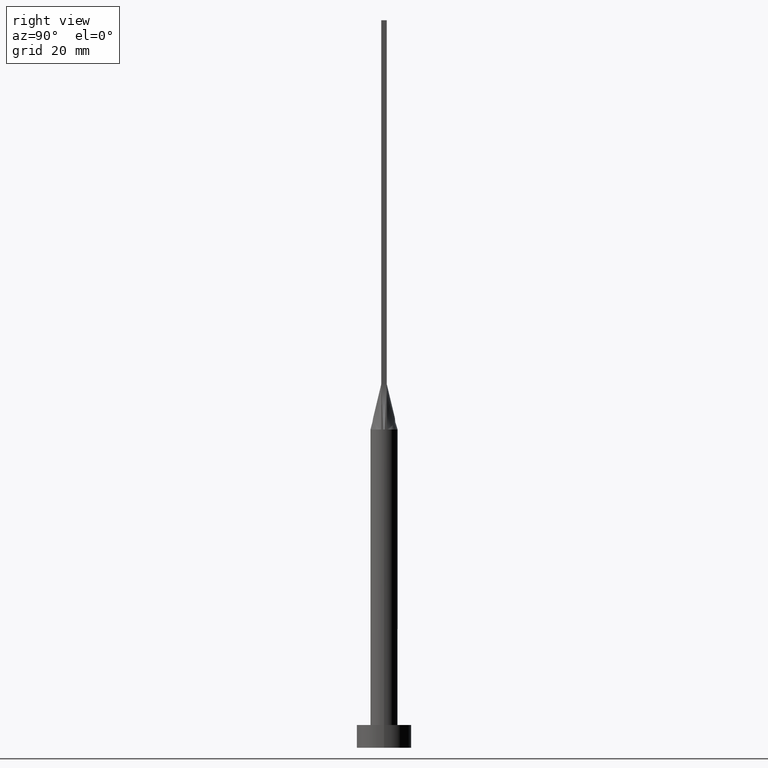
[diagram: clean part render]
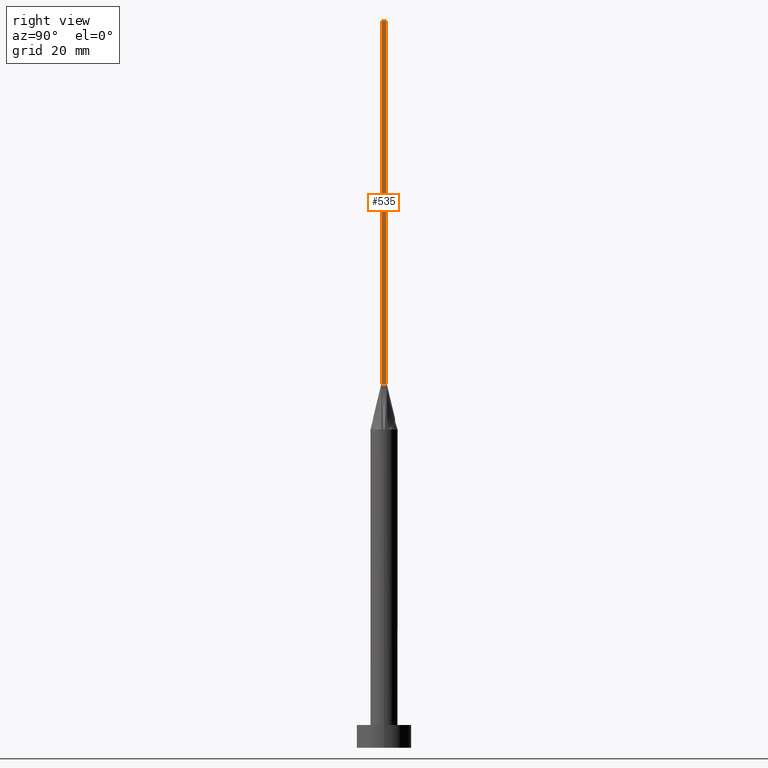
[diagram: same view with one face highlighted and labeled with its STEP entity id]
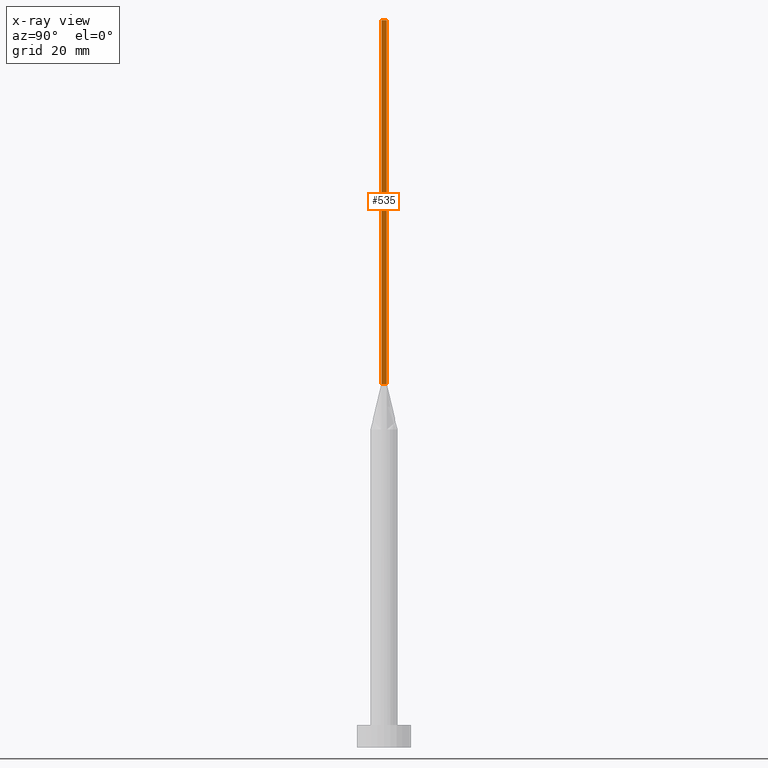
[diagram: x-ray of the same camera — body ghosted, the highlighted face saturated]
A machine part, right view. The second image highlights one B-rep face of the part: STEP entity #535.
The next image is the same camera in x-ray: the body ghosted, the highlighted face saturated — about 0% of this face is hidden behind the body in this view.
In plain terms, the highlighted planar face has unit normal (-1, 0, 0).
Its self-contained STEP definition (entity closure, byte-faithful):
#23 = EDGE_LOOP ( 'NONE', ( #370, #215, #334, #119 ) ) ;
#34 = CARTESIAN_POINT ( 'NONE',  ( 2.750000000000000000, -0.5999999999999997558, 80.00000000000000000 ) ) ;
#57 = CARTESIAN_POINT ( 'NONE',  ( 2.750000000000000000, -0.5999999999999997558, 160.0000000000000000 ) ) ;
#61 = DIRECTION ( 'NONE',  ( -1.000000000000000000, 0.000000000000000000, 0.000000000000000000 ) ) ;
#67 = PLANE ( 'NONE',  #83 ) ;
#83 = AXIS2_PLACEMENT_3D ( 'NONE', #57, #61, #371 ) ;
#87 = EDGE_CURVE ( 'NONE', #164, #109, #311, .T. ) ;
#95 = VERTEX_POINT ( 'NONE', #34 ) ;
#109 = VERTEX_POINT ( 'NONE', #274 ) ;
#119 = ORIENTED_EDGE ( 'NONE', *, *, #266, .T. ) ;
#123 = CARTESIAN_POINT ( 'NONE',  ( 2.750000000000000000, -0.5999999999999997558, 160.0000000000000000 ) ) ;
#158 = VECTOR ( 'NONE', #494, 1000.000000000000000 ) ;
#163 = VECTOR ( 'NONE', #314, 1000.000000000000000 ) ;
#164 = VERTEX_POINT ( 'NONE', #287 ) ;
#192 = CARTESIAN_POINT ( 'NONE',  ( 2.750000000000000000, 0.6000000000000001998, 80.00000000000000000 ) ) ;
#209 = VERTEX_POINT ( 'NONE', #192 ) ;
#214 = EDGE_CURVE ( 'NONE', #109, #209, #283, .T. ) ;
#215 = ORIENTED_EDGE ( 'NONE', *, *, #214, .F. ) ;
#261 = DIRECTION ( 'NONE',  ( -0.000000000000000000, -0.000000000000000000, -1.000000000000000000 ) ) ;
#265 = CARTESIAN_POINT ( 'NONE',  ( 2.750000000000000000, -0.5999999999999997558, 160.0000000000000000 ) ) ;
#266 = EDGE_CURVE ( 'NONE', #164, #95, #485, .T. ) ;
#274 = CARTESIAN_POINT ( 'NONE',  ( 2.750000000000000000, 0.6000000000000001998, 160.0000000000000000 ) ) ;
#283 = LINE ( 'NONE', #367, #292 ) ;
#287 = CARTESIAN_POINT ( 'NONE',  ( 2.750000000000000000, -0.5999999999999997558, 160.0000000000000000 ) ) ;
#292 = VECTOR ( 'NONE', #548, 1000.000000000000000 ) ;
#311 = LINE ( 'NONE', #265, #163 ) ;
#314 = DIRECTION ( 'NONE',  ( 0.000000000000000000, 1.000000000000000000, 0.000000000000000000 ) ) ;
#327 = EDGE_CURVE ( 'NONE', #95, #209, #405, .T. ) ;
#334 = ORIENTED_EDGE ( 'NONE', *, *, #87, .F. ) ;
#367 = CARTESIAN_POINT ( 'NONE',  ( 2.750000000000000000, 0.6000000000000001998, 160.0000000000000000 ) ) ;
#370 = ORIENTED_EDGE ( 'NONE', *, *, #327, .T. ) ;
#371 = DIRECTION ( 'NONE',  ( 0.000000000000000000, 0.000000000000000000, 1.000000000000000000 ) ) ;
#405 = LINE ( 'NONE', #501, #158 ) ;
#429 = VECTOR ( 'NONE', #261, 1000.000000000000000 ) ;
#485 = LINE ( 'NONE', #123, #429 ) ;
#494 = DIRECTION ( 'NONE',  ( -0.000000000000000000, 1.000000000000000000, -0.000000000000000000 ) ) ;
#501 = CARTESIAN_POINT ( 'NONE',  ( 2.750000000000000000, 0.6000000000000001998, 80.00000000000000000 ) ) ;
#535 = ADVANCED_FACE ( 'NONE', ( #561 ), #67, .F. ) ;
#548 = DIRECTION ( 'NONE',  ( -0.000000000000000000, -0.000000000000000000, -1.000000000000000000 ) ) ;
#561 = FACE_OUTER_BOUND ( 'NONE', #23, .T. ) ;